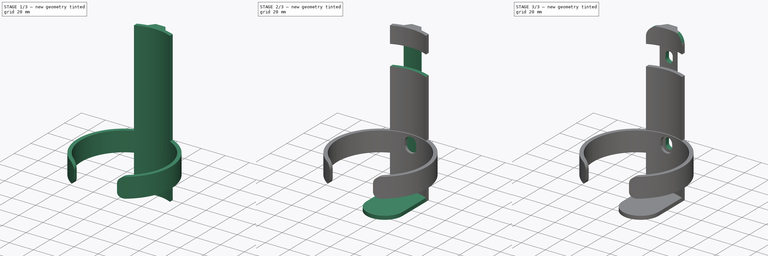
[diagram: build sequence overview — one tinted view per stage of 3, left to right]
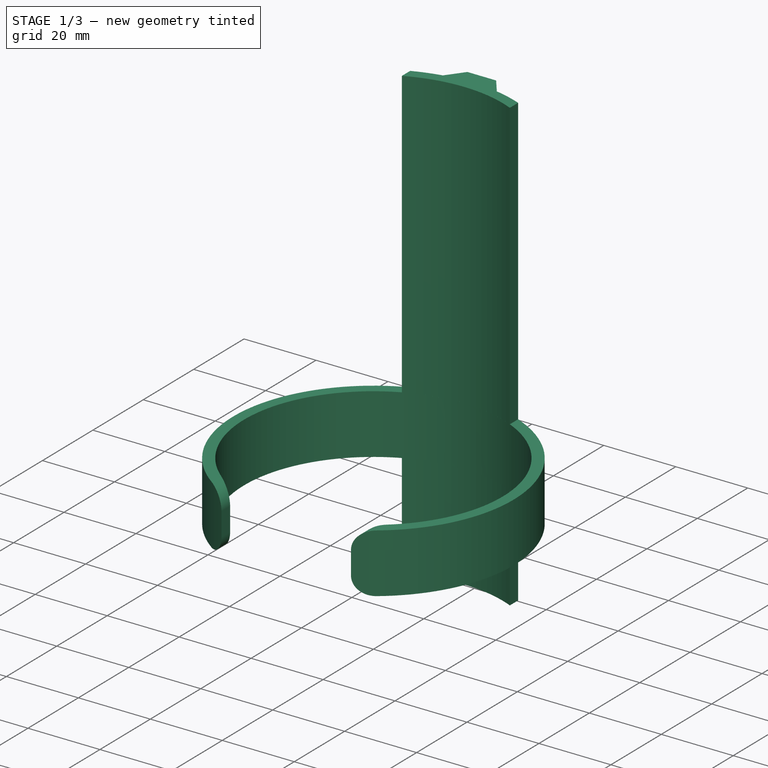
[diagram: stage 1 of 3 — iso view after this stage's code; geometry added in this stage tinted green]
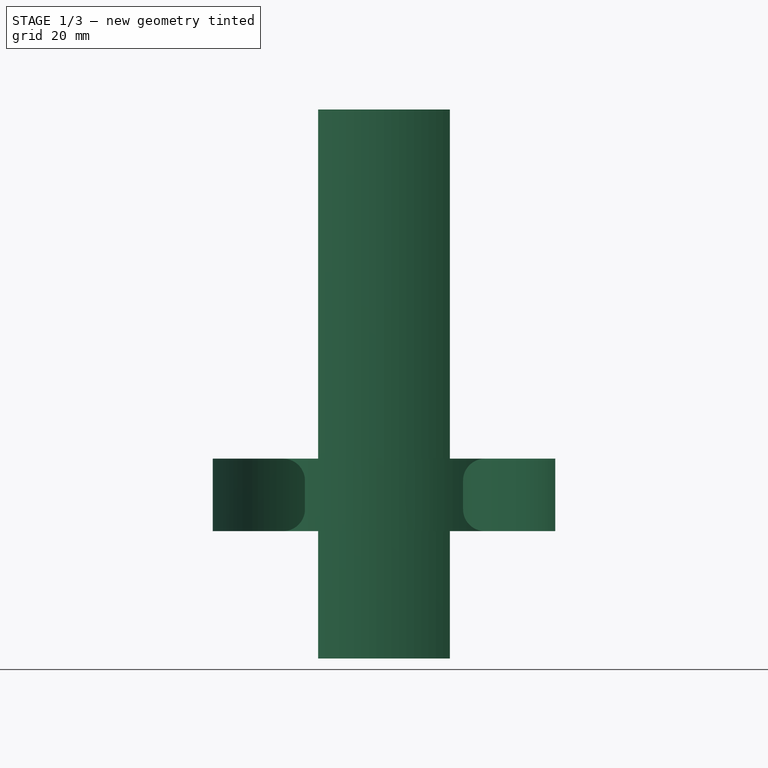
[diagram: stage 1 of 3 — front view after this stage's code; geometry added in this stage tinted green]
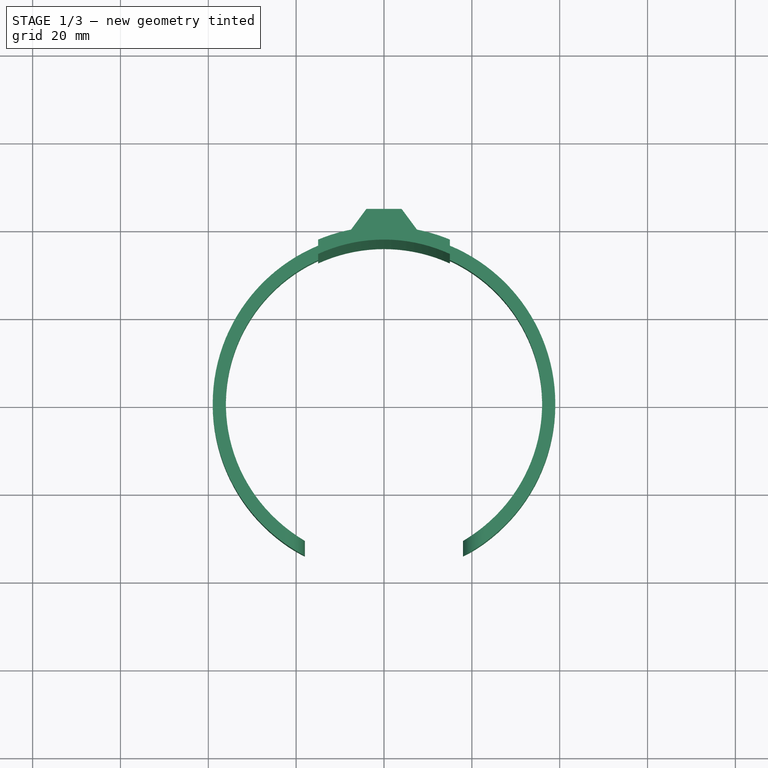
[diagram: stage 1 of 3 — top view after this stage's code; geometry added in this stage tinted green]
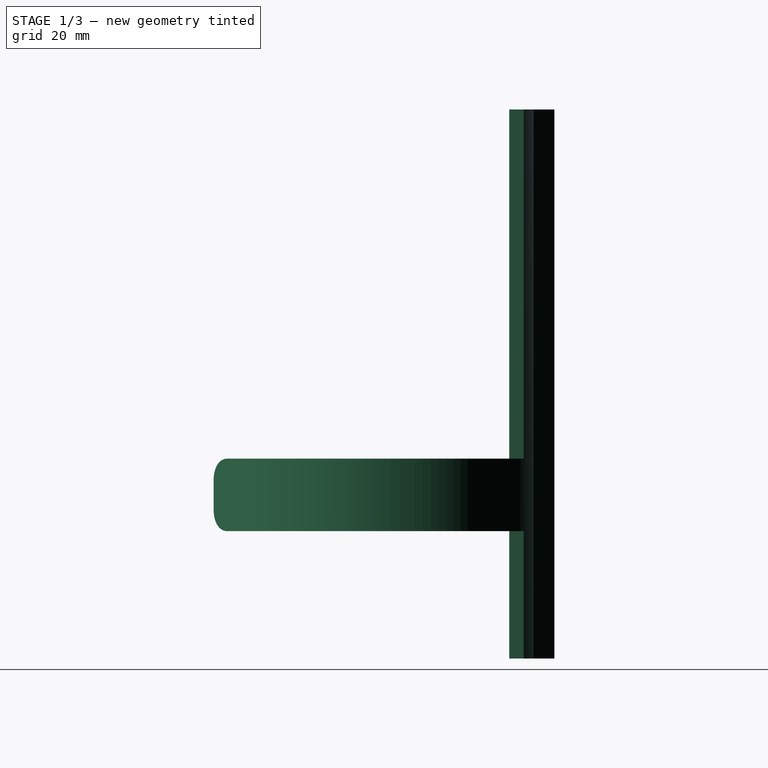
[diagram: stage 1 of 3 — right view after this stage's code; geometry added in this stage tinted green]
FCSTD DOCUMENT  (FreeCAD 0.21Rpre_29277.fc34 (Git))
Label: kulacstarto
License: All rights reserved
LicenseURL: http://en.wikipedia.org/wiki/All_rights_reserved
objects: Sketcher::SketchObject×7, PartDesign::Pocket×4, PartDesign::Pad×3, PartDesign::Body×2, Part::Fillet×2
note: 25 computed .brp shape members not serialized (recipe doc carries the construction recipe); baked Part::Feature solids carry a one-line shape summary decoded from their .brp

FEATURE [Sketcher::SketchObject] Sketch
  FullyConstrained = true
  MapMode = 5
  Support = -> [XY_Plane]
  sketch-geometry (8):
    g0: ArcOfCircle CenterX=0 CenterY=-3.43907e-07 CenterZ=0 NormalX=0 NormalY=0 NormalZ=1 AngleXU=0 Radius=36 StartAngle=1.14102 EndAngle=2.00057
    g1: ArcOfCircle CenterX=2.1138e-06 CenterY=-8.80752e-07 CenterZ=0 NormalX=0 NormalY=0 NormalZ=1 AngleXU=0 Radius=39 StartAngle=1.17601 EndAngle=1.37728
    g2: LineSegment StartX=-15 StartY=32.7261 StartZ=0 EndX=-15 EndY=36 EndZ=0
    g3: LineSegment StartX=15 StartY=32.7261 StartZ=0 EndX=15 EndY=36 EndZ=0
    g4: LineSegment StartX=-4 StartY=43 StartZ=0 EndX=4 EndY=43 EndZ=0
    g5: ArcOfCircle CenterX=-2.1138e-06 CenterY=-8.80752e-07 CenterZ=0 NormalX=0 NormalY=0 NormalZ=1 AngleXU=0 Radius=39 StartAngle=1.76431 EndAngle=1.96559
    g6: LineSegment StartX=-7.5 StartY=38.2721 StartZ=0 EndX=-4 EndY=43 EndZ=0
    g7: LineSegment StartX=7.5 StartY=38.2721 StartZ=0 EndX=4 EndY=43 EndZ=0
  constraints (27):
    c: Radius(g0) = 36
    c: Vertical(g2)
    c: Vertical(g3)
    c: Horizontal(g4)
    c: Coincident(g0,g2)
    c: Coincident(g0,g3)
    c: Coincident(g5,g2)
    c: Coincident(g1,g3)
    c: DistanceX(g0) = -15
    c: DistanceX(g0) = 15
    c: DistanceX(g1) = 7.5
    c: Coincident(g7,g1)
    c: Coincident(g4,g6)
    c: Coincident(g4,g7)
    c: DistanceX(g4) = -4
    c: DistanceY(g4) = 43
    c: DistanceX(g4) = 4
    c: Radius(g5) = 39
    c: Radius(g1) = 39
    c: DistanceY(g2) = 36
    c: DistanceY(g1) = 36
    c: DistanceY(g1) = 38.2721
    c: DistanceX(g5) = -7.5
    c: DistanceY(g5) = 38.2721
    c: DistanceY(g0) = 32.7261
    c: DistanceY(g0) = 32.7261
    c: Coincident(g5,g6)
FEATURE [PartDesign::Pad] Pad  label="gerinc"
  Direction = (0,0,1)
  Length = 125
  Length2 = 10
  Profile = -> Sketch
  ReferenceAxis = -> Sketch [N_Axis]
  Type = 0
FEATURE [Part::Fillet] Fillet001
  Base = -> Pocket003
  Edges = 4 edges r=5: [Edge3,Edge4,Edge15,Edge18]
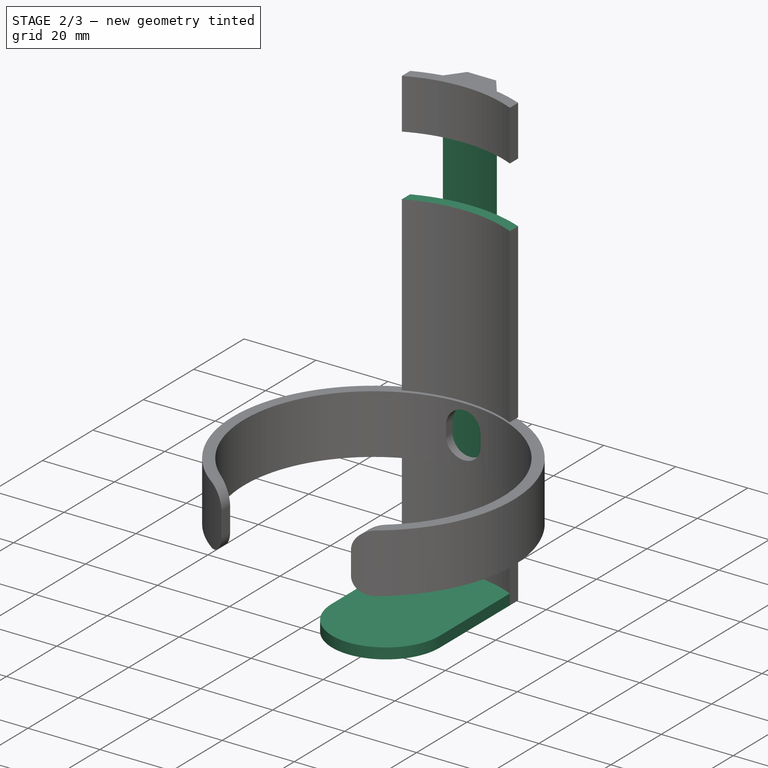
[diagram: stage 2 of 3 — iso view after this stage's code; geometry added in this stage tinted green]
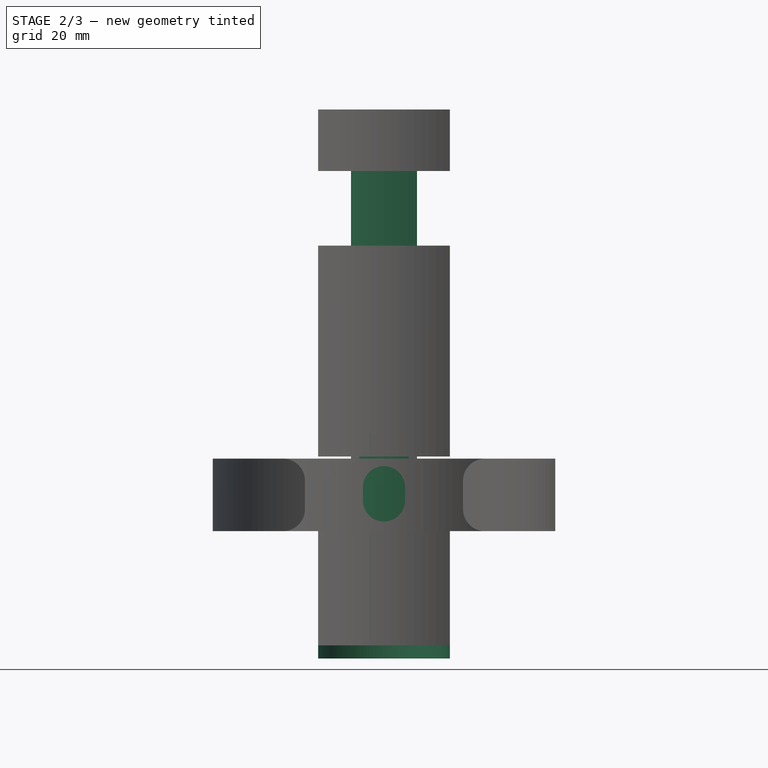
[diagram: stage 2 of 3 — front view after this stage's code; geometry added in this stage tinted green]
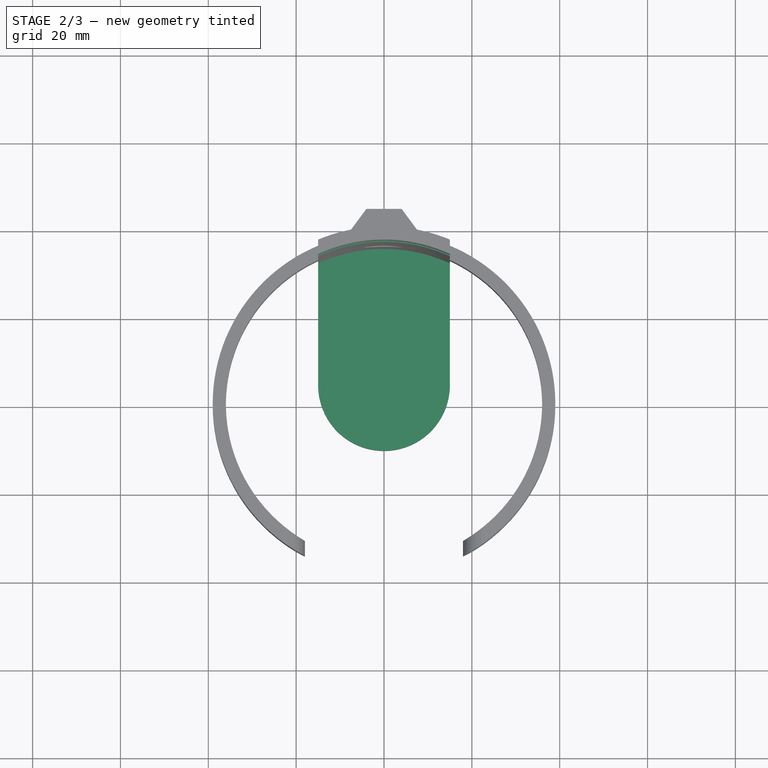
[diagram: stage 2 of 3 — top view after this stage's code; geometry added in this stage tinted green]
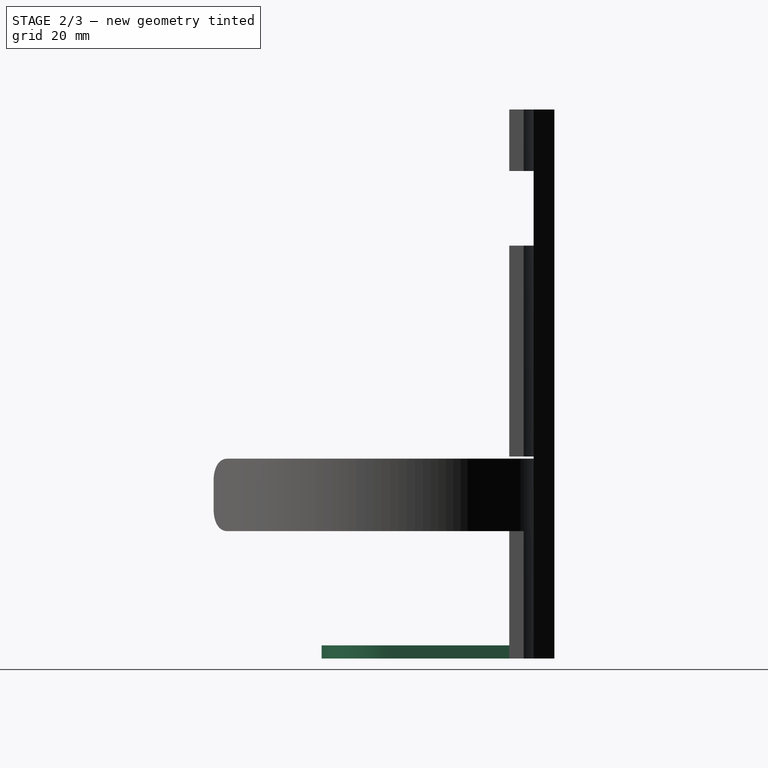
[diagram: stage 2 of 3 — right view after this stage's code; geometry added in this stage tinted green]
FEATURE [Sketcher::SketchObject] Sketch003  label="talp"
  FullyConstrained = true
  MapMode = 5
  Support = -> [XY_Plane]
  sketch-geometry (4):
    g0: ArcOfCircle CenterX=0 CenterY=5 CenterZ=0 NormalX=0 NormalY=0 NormalZ=1 AngleXU=0 Radius=15 StartAngle=3.14159 EndAngle=6.28319
    g1: LineSegment StartX=15 StartY=5 StartZ=0 EndX=15 EndY=32.7261 EndZ=0
    g2: LineSegment StartX=-15 StartY=32.7261 StartZ=0 EndX=-15 EndY=5 EndZ=0
    g3: ArcOfCircle CenterX=0 CenterY=0 CenterZ=0 NormalX=0 NormalY=0 NormalZ=1 AngleXU=0 Radius=36 StartAngle=1.14102 EndAngle=2.00057
  constraints (11):
    c: Tangent(g0,g1) = -1.5708
    c: Tangent(g2,g0) = -1.5708
    c: PointOnObject(g0,g-2)
    c: Radius(g0) = 15
    c: Coincident(g3,g-1)
    c: Radius(g3) = 36
    c: Coincident(g3,g2)
    c: Coincident(g3,g1)
    c: DistanceY(g0) = 5
    c: DistanceX(g2) = -15
    c: DistanceX(g1) = 15
FEATURE [PartDesign::Pad] Pad001  label="talp-tarto"
  BaseFeature = -> Pad
  Direction = (0,0,1)
  Length = 3
  Length2 = 10
  Profile = -> Sketch003
  ReferenceAxis = -> Sketch003 [N_Axis]
  Type = 0
FEATURE [Sketcher::SketchObject] Sketch004
  AttachmentOffset = pos=(0,0,111) rot=(0,0,1;0rad)
  FullyConstrained = true
  MapMode = 5
  Placement = pos=(0,0,111) rot=(0,0,1;0rad)
  Support = -> [XY_Plane]
  sketch-geometry (4):
    g0: ArcOfCircle CenterX=1.8e-15 CenterY=-3.43907e-07 CenterZ=0 NormalX=0 NormalY=0 NormalZ=1 AngleXU=0 Radius=36 StartAngle=1.14102 EndAngle=2.00057
    g1: LineSegment StartX=-15 StartY=32.7261 StartZ=0 EndX=-15 EndY=36 EndZ=0
    g2: LineSegment StartX=15 StartY=32.7261 StartZ=0 EndX=15 EndY=36 EndZ=0
    g3: ArcOfCircle CenterX=1.8e-15 CenterY=-3.43907e-07 CenterZ=0 NormalX=0 NormalY=0 NormalZ=1 AngleXU=0 Radius=39 StartAngle=1.17601 EndAngle=1.96559
  constraints (13):
    c: Radius(g0) = 36
    c: Vertical(g1)
    c: Vertical(g2)
    c: Coincident(g0,g1)
    c: Coincident(g0,g2)
    c: DistanceX(g0) = -15
    c: DistanceX(g0) = 15
    c: DistanceY(g1) = 36
    c: DistanceY(g2) = 36
    c: DistanceY(g0) = 32.7261
    c: Coincident(g3,g0)
    c: Coincident(g3,g1)
    c: Coincident(g3,g2)
FEATURE [PartDesign::Pocket] Pocket  label="felso-kivagas"
  BaseFeature = -> Pad001
  Direction = (0,0,-1)
  Length = 17
  Length2 = 5
  Profile = -> Sketch004
  ReferenceAxis = -> Sketch004 [N_Axis]
  Type = 0
FEATURE [Sketcher::SketchObject] Sketch005
  AttachmentOffset = pos=(0,0,46) rot=(0,0,1;0rad)
  FullyConstrained = true
  MapMode = 5
  Placement = pos=(0,0,46) rot=(0,0,1;0rad)
  Support = -> [XY_Plane]
  sketch-geometry (4):
    g0: ArcOfCircle CenterX=1.8e-15 CenterY=-3.43907e-07 CenterZ=0 NormalX=0 NormalY=0 NormalZ=1 AngleXU=0 Radius=36 StartAngle=1.14102 EndAngle=2.00057
    g1: LineSegment StartX=-15 StartY=32.7261 StartZ=0 EndX=-15 EndY=36 EndZ=0
    g2: LineSegment StartX=15 StartY=32.7261 StartZ=0 EndX=15 EndY=36 EndZ=0
    g3: ArcOfCircle CenterX=1.8e-15 CenterY=-3.43907e-07 CenterZ=0 NormalX=0 NormalY=0 NormalZ=1 AngleXU=0 Radius=39 StartAngle=1.17601 EndAngle=1.96559
  constraints (13):
    c: Radius(g0) = 36
    c: Vertical(g1)
    c: Vertical(g2)
    c: Coincident(g0,g1)
    c: Coincident(g0,g2)
    c: DistanceX(g0) = -15
    c: DistanceX(g0) = 15
    c: DistanceY(g1) = 36
    c: DistanceY(g2) = 36
    c: DistanceY(g0) = 32.7261
    c: Coincident(g3,g0)
    c: Coincident(g3,g1)
    c: Coincident(g3,g2)
FEATURE [PartDesign::Pocket] Pocket001  label="also-kivagas"
  BaseFeature = -> Pocket
  Direction = (0,0,-1)
  Length = 17
  Length2 = 5
  Profile = -> Sketch005
  ReferenceAxis = -> Sketch005 [N_Axis]
  Type = 0
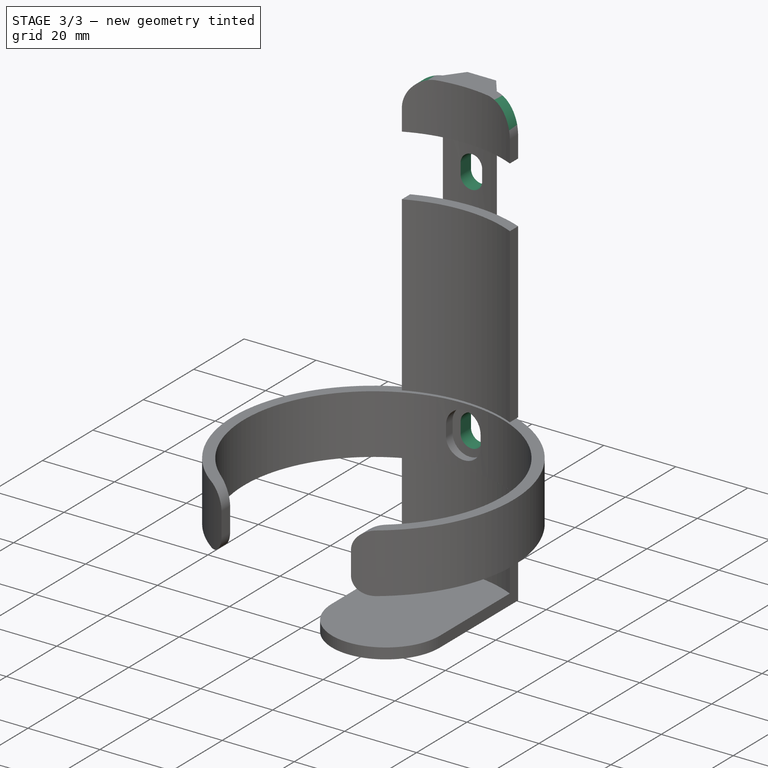
[diagram: stage 3 of 3 — iso view after this stage's code; geometry added in this stage tinted green]
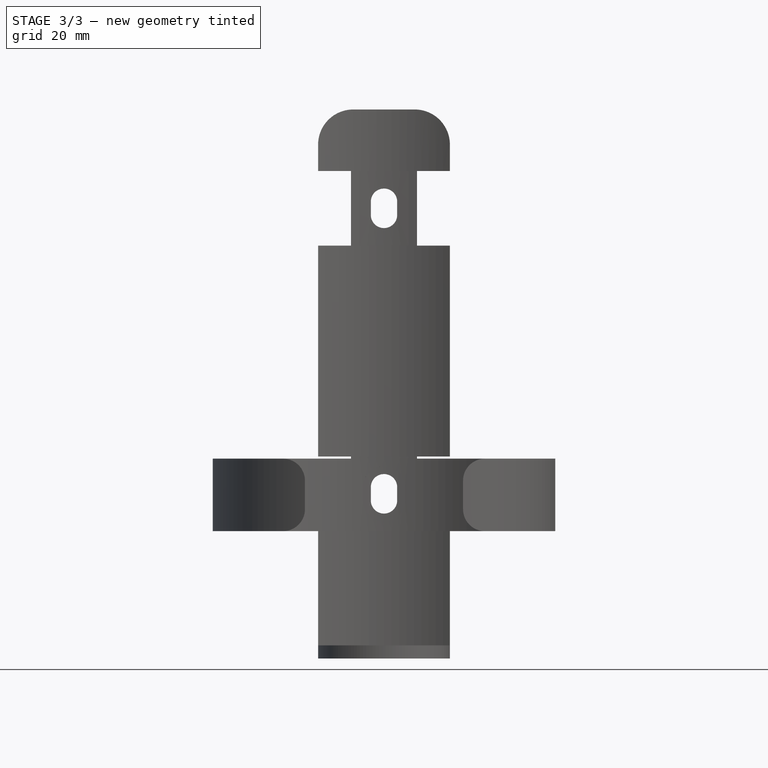
[diagram: stage 3 of 3 — front view after this stage's code; geometry added in this stage tinted green]
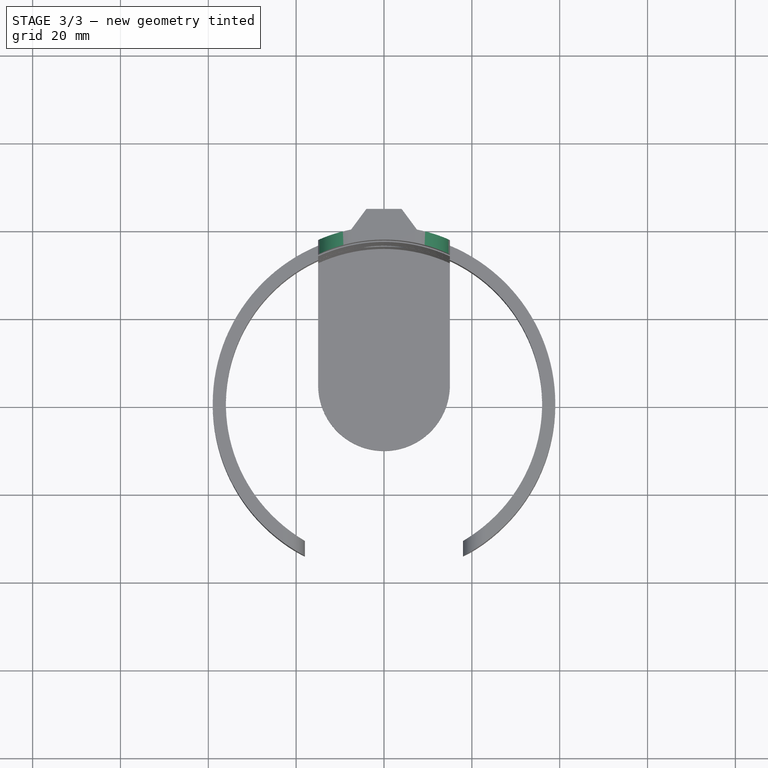
[diagram: stage 3 of 3 — top view after this stage's code; geometry added in this stage tinted green]
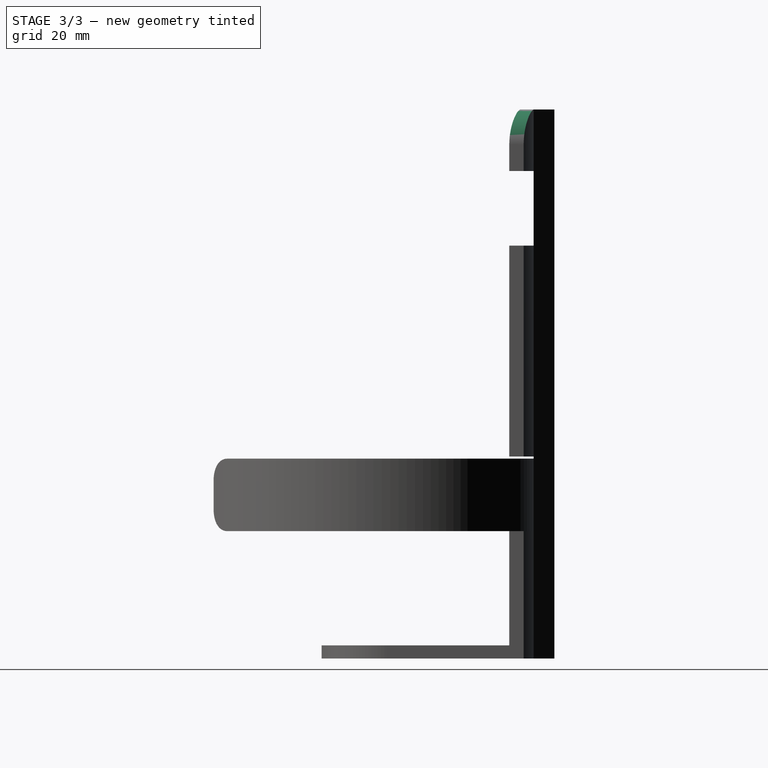
[diagram: stage 3 of 3 — right view after this stage's code; geometry added in this stage tinted green]
FEATURE [Sketcher::SketchObject] Sketch006
  AttachmentOffset = pos=(0,0,-35) rot=(0,0,1;0rad)
  FullyConstrained = true
  MapMode = 5
  Placement = pos=(0,35,-7.8e-15) rot=(1,0,0;1.5708rad)
  Support = -> [XZ_Plane]
  sketch-geometry (8):
    g0: ArcOfCircle CenterX=0 CenterY=104 CenterZ=0 NormalX=0 NormalY=0 NormalZ=1 AngleXU=0 Radius=3 StartAngle=8.4e-15 EndAngle=3.14159
    g1: ArcOfCircle CenterX=0 CenterY=101 CenterZ=0 NormalX=0 NormalY=0 NormalZ=1 AngleXU=0 Radius=3 StartAngle=3.14159 EndAngle=6.28319
    g2: LineSegment StartX=-3 StartY=104 StartZ=0 EndX=-3 EndY=101 EndZ=0
    g3: LineSegment StartX=3 StartY=101 StartZ=0 EndX=3 EndY=104 EndZ=0
    g4: ArcOfCircle CenterX=0 CenterY=39 CenterZ=0 NormalX=0 NormalY=0 NormalZ=1 AngleXU=0 Radius=3 StartAngle=-1.812e-13 EndAngle=3.14159
    g5: ArcOfCircle CenterX=0 CenterY=36 CenterZ=0 NormalX=0 NormalY=0 NormalZ=1 AngleXU=0 Radius=3 StartAngle=3.14159 EndAngle=6.28319
    g6: LineSegment StartX=-3 StartY=39 StartZ=0 EndX=-3 EndY=36 EndZ=0
    g7: LineSegment StartX=3 StartY=36 StartZ=0 EndX=3 EndY=39 EndZ=0
  constraints (20):
    c: Tangent(g0,g2) = -1.5708
    c: Tangent(g2,g1) = -1.5708
    c: Tangent(g1,g3) = -1.5708
    c: Tangent(g3,g0) = -1.5708
    c: Equal(g0,g1)
    c: PointOnObject(g0,g-2)
    c: PointOnObject(g1,g-2)
    c: Tangent(g4,g6) = -1.5708
    c: Tangent(g6,g5) = -1.5708
    c: Tangent(g5,g7) = -1.5708
    c: Tangent(g7,g4) = -1.5708
    c: Equal(g4,g5)
    c: PointOnObject(g4,g-2)
    c: PointOnObject(g5,g-2)
    c: Radius(g4) = 3
    c: Radius(g0) = 3
    c: DistanceY(g5) = 36
    c: DistanceY(g4) = 39
    c: DistanceY(g1) = 101
    c: DistanceY(g0) = 104
FEATURE [PartDesign::Pocket] Pocket002  label="csavar-tengely-helyek"
  BaseFeature = -> Pocket001
  Direction = (0,1,-2e-16)
  Length = 20
  Length2 = 5
  Profile = -> Sketch006
  ReferenceAxis = -> Sketch006 [N_Axis]
  Type = 0
FEATURE [PartDesign::Body] Body  label="kulacstarto-gerinc"
  Group = -> [Sketch,Pad,Sketch003,Pad001,Sketch004,Pocket,Sketch005,Pocket001,Sketch006,Pocket002]
  Origin = -> Origin
  Tip = -> Pocket002
FEATURE [Sketcher::SketchObject] Sketch007
  AttachmentOffset = pos=(0,0,29) rot=(0,0,1;0rad)
  FullyConstrained = true
  MapMode = 5
  Placement = pos=(0,0,29) rot=(0,0,1;0rad)
  Support = -> [XY_Plane001]
  sketch-geometry (6):
    g0: ArcOfCircle CenterX=0 CenterY=0 CenterZ=0 NormalX=0 NormalY=0 NormalZ=1 AngleXU=0 Radius=36 StartAngle=5.23599 EndAngle=10.472
    g1: ArcOfCircle CenterX=0 CenterY=0 CenterZ=0 NormalX=0 NormalY=0 NormalZ=1 AngleXU=0 Radius=39 StartAngle=5.19212 EndAngle=7.66047
    g2: LineSegment StartX=-18 StartY=-31.1769 StartZ=0 EndX=-18 EndY=-34.5977 EndZ=0
    g3: LineSegment StartX=18 StartY=-31.1769 StartZ=0 EndX=18 EndY=-34.5977 EndZ=0
    g4: LineSegment StartX=-7.5 StartY=38.2721 StartZ=0 EndX=7.5 EndY=38.2721 EndZ=0
    g5: ArcOfCircle CenterX=0 CenterY=0 CenterZ=0 NormalX=0 NormalY=0 NormalZ=1 AngleXU=0 Radius=39 StartAngle=1.76431 EndAngle=4.23266
  constraints (18):
    c: Coincident(g0,g-1)
    c: Coincident(g1,g0)
    c: Radius(g0) = 36
    c: Radius(g1) = 39
    c: Vertical(g2)
    c: Vertical(g3)
    c: DistanceX(g2) = -18
    c: DistanceX(g3) = 18
    c: Coincident(g0,g2)
    c: Coincident(g0,g3)
    c: Coincident(g5,g2)
    c: Coincident(g1,g3)
    c: Horizontal(g4)
    c: DistanceX(g4,g4) = 15
    c: Equal(g1,g5)
    c: Coincident(g1,g4)
    c: Coincident(g5,g4)
    c: Coincident(g1,g5)
FEATURE [PartDesign::Pad] Pad002  label="kar-test"
  Direction = (0,0,1)
  Length = 16.5
  Length2 = 10
  Profile = -> Sketch007
  ReferenceAxis = -> Sketch007 [N_Axis]
  Type = 0
FEATURE [Sketcher::SketchObject] Sketch008
  AttachmentOffset = pos=(0,0,-35) rot=(0,0,1;0rad)
  FullyConstrained = true
  MapMode = 5
  Placement = pos=(0,35,-7.8e-15) rot=(1,0,0;1.5708rad)
  Support = -> [XZ_Plane001]
  sketch-geometry (4):
    g0: ArcOfCircle CenterX=0 CenterY=39 CenterZ=0 NormalX=0 NormalY=0 NormalZ=1 AngleXU=0 Radius=4.8 StartAngle=5e-16 EndAngle=3.14159
    g1: ArcOfCircle CenterX=0 CenterY=36 CenterZ=0 NormalX=0 NormalY=0 NormalZ=1 AngleXU=0 Radius=4.8 StartAngle=3.14159 EndAngle=6.28319
    g2: LineSegment StartX=-4.8 StartY=39 StartZ=0 EndX=-4.8 EndY=36 EndZ=0
    g3: LineSegment StartX=4.8 StartY=36 StartZ=0 EndX=4.8 EndY=39 EndZ=0
  constraints (10):
    c: Tangent(g0,g2) = -1.5708
    c: Tangent(g2,g1) = -1.5708
    c: Tangent(g1,g3) = -1.5708
    c: Tangent(g3,g0) = -1.5708
    c: Equal(g0,g1)
    c: PointOnObject(g0,g-2)
    c: PointOnObject(g1,g-2)
    c: Radius(g0) = 4.8
    c: DistanceY(g1) = 36
    c: DistanceY(g0) = 39
FEATURE [PartDesign::Pocket] Pocket003  label="csav-fej-kivagas"
  BaseFeature = -> Pad002
  Direction = (0,1,-2e-16)
  Length = 5
  Length2 = 5
  Profile = -> Sketch008
  ReferenceAxis = -> Sketch008 [N_Axis]
  Type = 0
FEATURE [PartDesign::Body] Body001  label="tarto-kar"
  Group = -> [Sketch007,Pad002,Sketch008,Pocket003]
  Origin = -> Origin001
  Tip = -> Pocket003
FEATURE [Part::Fillet] Fillet
  Base = -> Pocket002
  Edges = 2 edges r=8: [Edge64,Edge66]
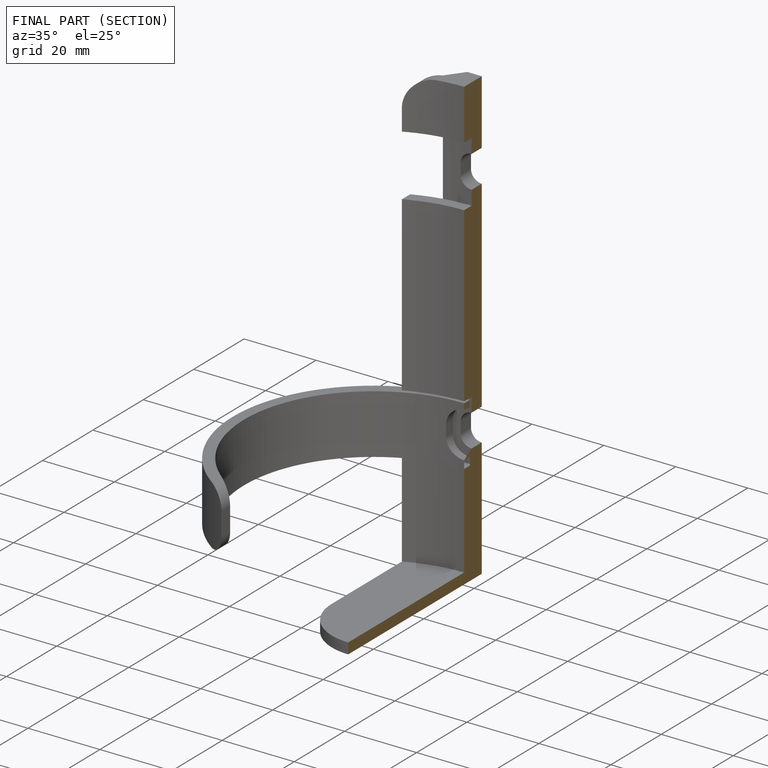
[diagram: finished part — half-section view (interior)]
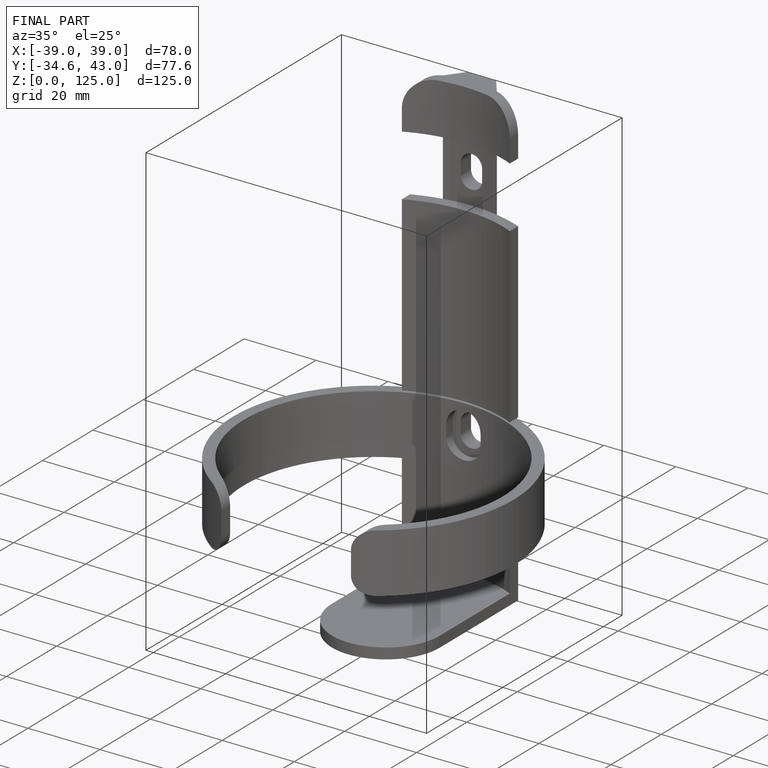
[diagram: finished part — iso view with bounding-box wireframe]
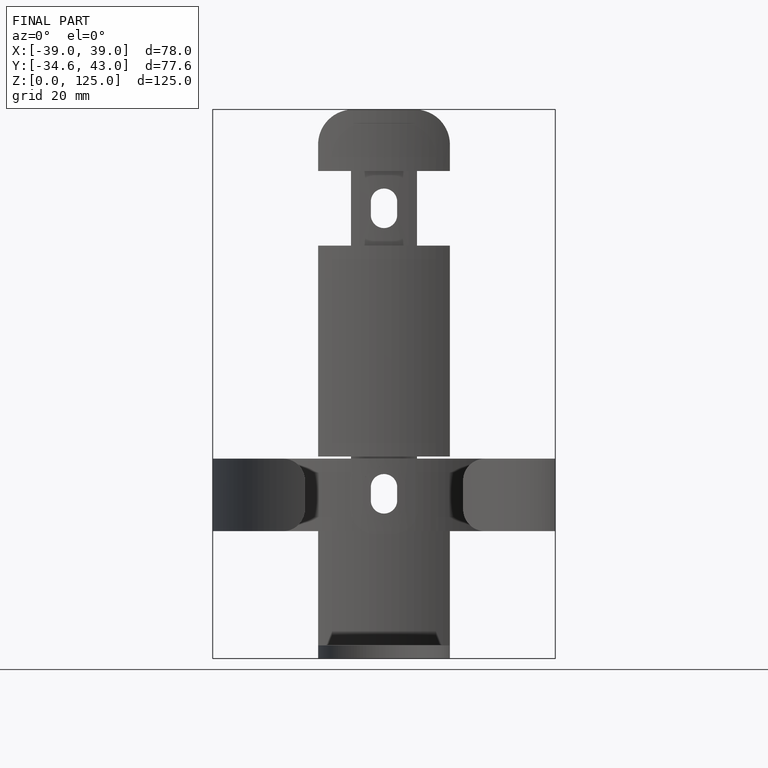
[diagram: finished part — front view with bounding-box wireframe]
